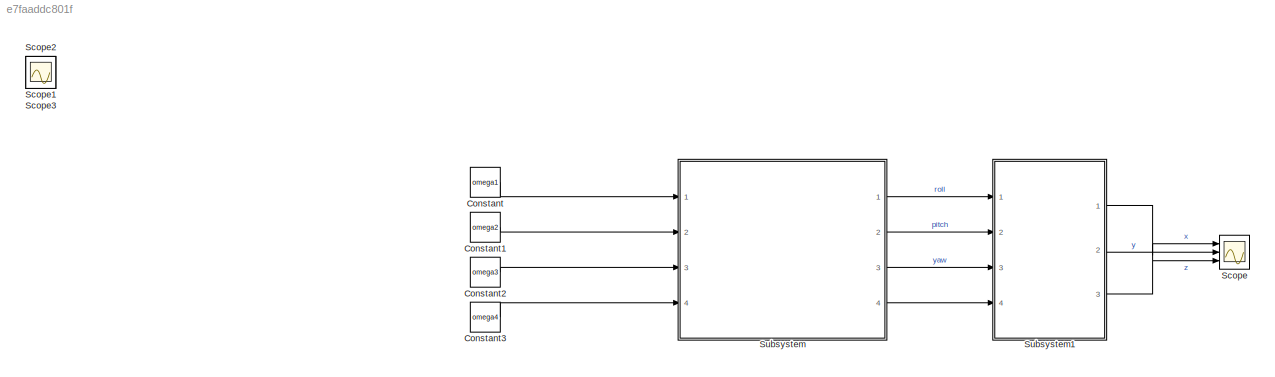
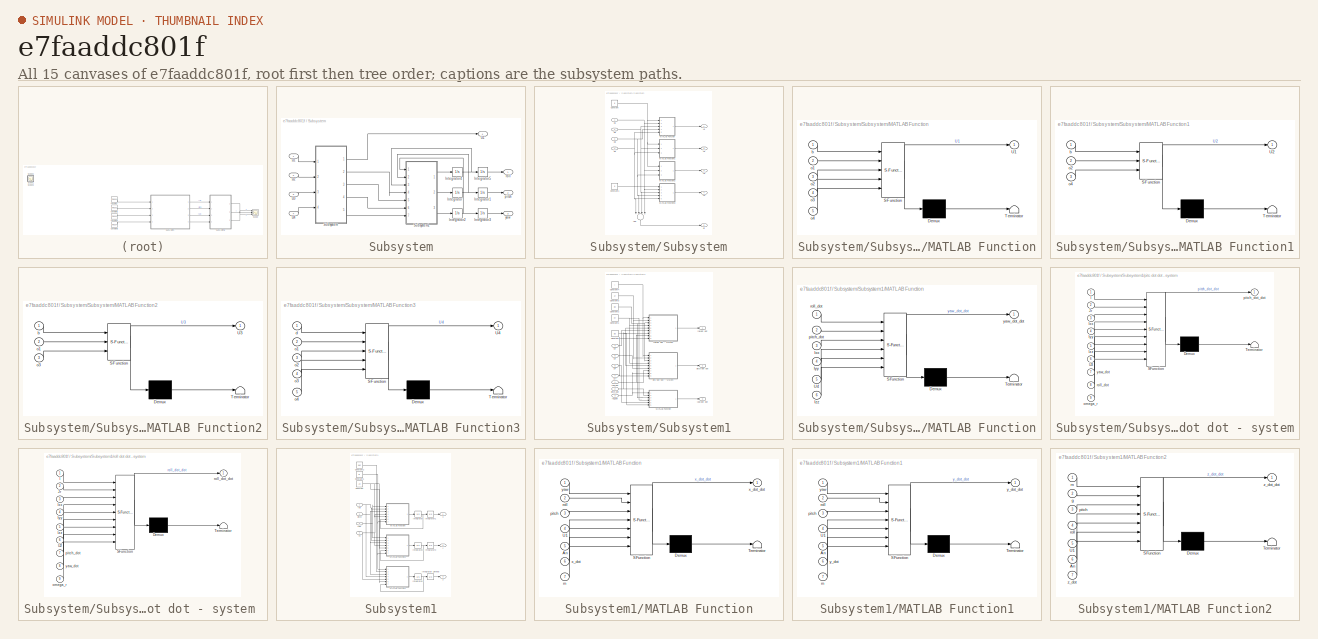
[diagram: thumbnail index - all 15 canvases of the model, root first then tree order]
MODEL slx_e7faaddc801f
KIND model
CONFIG AbsTol = auto
CONFIG EnableMultiTasking = off
CONFIG FixedStep = auto
CONFIG MaxStep = auto
CONFIG MinStep = auto
CONFIG RelTol = 1e-3
CONFIG SampleTimeConstraint = Unconstrained
CONFIG Solver = VariableStepAuto
CONFIG SolverName = VariableStepAuto
CONFIG StartTime = 0.0
CONFIG StopTime = 10.0
BLOCK [Constant] Constant
  Value = omega1
BLOCK [Constant] Constant1
  Value = omega2
BLOCK [Constant] Constant2
  Value = omega3
BLOCK [Constant] Constant3
  Value = omega4
BLOCK [Scope] Scope
  Floating = off
  NumInputPorts = 3
  Ports = [3]
  ScopeSpecificationString = Simulink.scopes.TimeScopeBlockCfg('CurrentConfiguration', extmgr.ConfigurationSet(extmgr.Configuration('Core','General UI',true),extmgr.Configuration('Core','Source UI',true),extmgr.Configuration('Sources','WiredSimulink',true),extmgr.Configuration('Visuals','Time Domain',true,'SerializedDisplays',{struct('MinYLimReal','-304.639','MaxYLimReal','67.77622','YLabelReal','','MinYLimMag',' 0.00000','Ma...<+1386ch>
BLOCK [Scope] Scope1
  Floating = off
  IOType = viewer
  NumInputPorts = 1
  Ports = []
  ScopeSpecificationString = Simulink.scopes.TimeScopeBlockCfg('CurrentConfiguration', extmgr.ConfigurationSet(extmgr.Configuration('Core','General UI',true),extmgr.Configuration('Core','Source UI',true),extmgr.Configuration('Sources','WiredSimulink',true,'DataLoggingVariableName','ScopeData1'),extmgr.Configuration('Visuals','Time Domain',true,'SerializedDisplays',{struct('MinYLimReal','-3.9162','MaxYLimReal','3.88682','YLabe...<+1445ch>
BLOCK [Scope] Scope2
  Floating = off
  IOType = viewer
  NumInputPorts = 1
  Ports = []
  ScopeSpecificationString = Simulink.scopes.TimeScopeBlockCfg('CurrentConfiguration', extmgr.ConfigurationSet(extmgr.Configuration('Core','General UI',true),extmgr.Configuration('Core','Source UI',true),extmgr.Configuration('Sources','WiredSimulink',true,'DataLoggingVariableName','ScopeData1'),extmgr.Configuration('Visuals','Time Domain',true,'SerializedDisplays',{struct('MinYLimReal','-26.375','MaxYLimReal','237.375','YLabe...<+1383ch>
BLOCK [Scope] Scope3
  Floating = off
  IOType = viewer
  NumInputPorts = 1
  Ports = []
  ScopeSpecificationString = Simulink.scopes.TimeScopeBlockCfg('CurrentConfiguration', extmgr.ConfigurationSet(extmgr.Configuration('Core','General UI',true),extmgr.Configuration('Core','Source UI',true),extmgr.Configuration('Sources','WiredSimulink',true,'DataLoggingVariableName','ScopeData1'),extmgr.Configuration('Visuals','Time Domain',true,'SerializedDisplays',{struct('MinYLimReal','-0.76337','MaxYLimReal','6.87031','YLab...<+1430ch>
BLOCK [SubSystem] Subsystem
  Ports = [4, 4]
  RequestExecContextInheritance = off
BLOCK [Integrator] Subsystem/Integrator
  Ports = [1, 1]
BLOCK [Integrator] Subsystem/Integrator1
  Ports = [1, 1]
  WrapState = on
BLOCK [Integrator] Subsystem/Integrator2
  Ports = [1, 1]
BLOCK [Integrator] Subsystem/Integrator3
  Ports = [1, 1]
  WrapState = on
BLOCK [Integrator] Subsystem/Integrator4
  Ports = [1, 1]
BLOCK [Integrator] Subsystem/Integrator5
  Ports = [1, 1]
  WrapState = on
BLOCK [SubSystem] Subsystem/Subsystem
  Ports = [4, 5]
  RequestExecContextInheritance = off
BLOCK [Sum] Subsystem/Subsystem/Add
  InputSameDT = off
  Inputs = -+-+
  OutDataTypeStr = Inherit: Inherit via internal rule
  Ports = [4, 1]
  SaturateOnIntegerOverflow = off
BLOCK [Constant] Subsystem/Subsystem/Constant
  Value = b
BLOCK [Constant] Subsystem/Subsystem/Constant1
  Value = d
BLOCK [SubSystem] Subsystem/Subsystem/MATLAB Function
  ErrorFcn = Stateflow.Translate.translate
  PermitHierarchicalResolution = ExplicitOnly
  Ports = [5, 1]
  RequestExecContextInheritance = off
  SFBlockType = MATLAB Function
  TreatAsAtomicUnit = on
BLOCK [Demux] Subsystem/Subsystem/MATLAB Function/ Demux 
  Outputs = 1
  Ports = [1, 1]
BLOCK [S-Function] Subsystem/Subsystem/MATLAB Function/ SFunction 
  EnableBusSupport = on
  FunctionName = sf_sfun
  PortCounts = [5 2]
  Ports = [5, 2]
  SFcnIsStateOwnerBlock = off
  SFunctionDeploymentMode = off
  Tag = Stateflow S-Function 2
BLOCK [Terminator] Subsystem/Subsystem/MATLAB Function/ Terminator 
BLOCK [Outport] Subsystem/Subsystem/MATLAB Function/U1
  IconDisplay = Port number
BLOCK [Inport] Subsystem/Subsystem/MATLAB Function/b
  IconDisplay = Port number
BLOCK [Inport] Subsystem/Subsystem/MATLAB Function/o1
  IconDisplay = Port number
  Port = 2
BLOCK [Inport] Subsystem/Subsystem/MATLAB Function/o2
  IconDisplay = Port number
  Port = 3
BLOCK [Inport] Subsystem/Subsystem/MATLAB Function/o3
  IconDisplay = Port number
  Port = 4
BLOCK [Inport] Subsystem/Subsystem/MATLAB Function/o4
  IconDisplay = Port number
  Port = 5
BLOCK [SubSystem] Subsystem/Subsystem/MATLAB Function1
  ErrorFcn = Stateflow.Translate.translate
  PermitHierarchicalResolution = ExplicitOnly
  Ports = [3, 1]
  RequestExecContextInheritance = off
  SFBlockType = MATLAB Function
  TreatAsAtomicUnit = on
BLOCK [Demux] Subsystem/Subsystem/MATLAB Function1/ Demux 
  Outputs = 1
  Ports = [1, 1]
BLOCK [S-Function] Subsystem/Subsystem/MATLAB Function1/ SFunction 
  EnableBusSupport = on
  FunctionName = sf_sfun
  PortCounts = [3 2]
  Ports = [3, 2]
  SFcnIsStateOwnerBlock = off
  SFunctionDeploymentMode = off
  Tag = Stateflow S-Function 1
BLOCK [Terminator] Subsystem/Subsystem/MATLAB Function1/ Terminator 
BLOCK [Outport] Subsystem/Subsystem/MATLAB Function1/U2
  IconDisplay = Port number
BLOCK [Inport] Subsystem/Subsystem/MATLAB Function1/b
  IconDisplay = Port number
BLOCK [Inport] Subsystem/Subsystem/MATLAB Function1/o2
  IconDisplay = Port number
  Port = 2
BLOCK [Inport] Subsystem/Subsystem/MATLAB Function1/o4
  IconDisplay = Port number
  Port = 3
BLOCK [SubSystem] Subsystem/Subsystem/MATLAB Function2
  ErrorFcn = Stateflow.Translate.translate
  PermitHierarchicalResolution = ExplicitOnly
  Ports = [3, 1]
  RequestExecContextInheritance = off
  SFBlockType = MATLAB Function
  TreatAsAtomicUnit = on
BLOCK [Demux] Subsystem/Subsystem/MATLAB Function2/ Demux 
  Outputs = 1
  Ports = [1, 1]
BLOCK [S-Function] Subsystem/Subsystem/MATLAB Function2/ SFunction 
  EnableBusSupport = on
  FunctionName = sf_sfun
  PortCounts = [3 2]
  Ports = [3, 2]
  SFcnIsStateOwnerBlock = off
  SFunctionDeploymentMode = off
  Tag = Stateflow S-Function 3
BLOCK [Terminator] Subsystem/Subsystem/MATLAB Function2/ Terminator 
BLOCK [Outport] Subsystem/Subsystem/MATLAB Function2/U3
  IconDisplay = Port number
BLOCK [Inport] Subsystem/Subsystem/MATLAB Function2/b
  IconDisplay = Port number
BLOCK [Inport] Subsystem/Subsystem/MATLAB Function2/o1
  IconDisplay = Port number
  Port = 2
BLOCK [Inport] Subsystem/Subsystem/MATLAB Function2/o3
  IconDisplay = Port number
  Port = 3
BLOCK [SubSystem] Subsystem/Subsystem/MATLAB Function3
  ErrorFcn = Stateflow.Translate.translate
  PermitHierarchicalResolution = ExplicitOnly
  Ports = [5, 1]
  RequestExecContextInheritance = off
  SFBlockType = MATLAB Function
  TreatAsAtomicUnit = on
BLOCK [Demux] Subsystem/Subsystem/MATLAB Function3/ Demux 
  Outputs = 1
  Ports = [1, 1]
BLOCK [S-Function] Subsystem/Subsystem/MATLAB Function3/ SFunction 
  EnableBusSupport = on
  FunctionName = sf_sfun
  PortCounts = [5 2]
  Ports = [5, 2]
  SFcnIsStateOwnerBlock = off
  SFunctionDeploymentMode = off
  Tag = Stateflow S-Function 4
BLOCK [Terminator] Subsystem/Subsystem/MATLAB Function3/ Terminator 
BLOCK [Outport] Subsystem/Subsystem/MATLAB Function3/U4
  IconDisplay = Port number
BLOCK [Inport] Subsystem/Subsystem/MATLAB Function3/d
  IconDisplay = Port number
BLOCK [Inport] Subsystem/Subsystem/MATLAB Function3/o1
  IconDisplay = Port number
  Port = 2
BLOCK [Inport] Subsystem/Subsystem/MATLAB Function3/o2
  IconDisplay = Port number
  Port = 3
BLOCK [Inport] Subsystem/Subsystem/MATLAB Function3/o3
  IconDisplay = Port number
  Port = 4
BLOCK [Inport] Subsystem/Subsystem/MATLAB Function3/o4
  IconDisplay = Port number
  Port = 5
BLOCK [Outport] Subsystem/Subsystem/U1
  IconDisplay = Port number
BLOCK [Outport] Subsystem/Subsystem/U2
  IconDisplay = Port number
  Port = 2
BLOCK [Outport] Subsystem/Subsystem/U3
  IconDisplay = Port number
  Port = 3
BLOCK [Outport] Subsystem/Subsystem/U4
  IconDisplay = Port number
  Port = 4
BLOCK [Inport] Subsystem/Subsystem/Ω1
  IconDisplay = Port number
BLOCK [Inport] Subsystem/Subsystem/Ω2
  IconDisplay = Port number
  Port = 2
BLOCK [Inport] Subsystem/Subsystem/Ω3
  IconDisplay = Port number
  Port = 3
BLOCK [Inport] Subsystem/Subsystem/Ω4
  IconDisplay = Port number
  Port = 4
BLOCK [Outport] Subsystem/Subsystem/Ωr
  IconDisplay = Port number
  Port = 5
BLOCK [SubSystem] Subsystem/Subsystem1
  Ports = [7, 3]
  RequestExecContextInheritance = off
BLOCK [Constant] Subsystem/Subsystem1/Constant
  Value = Izz
BLOCK [Constant] Subsystem/Subsystem1/Constant1
  Value = Iyy
BLOCK [Constant] Subsystem/Subsystem1/Constant2
  Value = Ixx
BLOCK [Constant] Subsystem/Subsystem1/Constant3
  Value = Jr
BLOCK [Constant] Subsystem/Subsystem1/Constant4
  Value = l
BLOCK [SubSystem] Subsystem/Subsystem1/MATLAB Function
  ErrorFcn = Stateflow.Translate.translate
  PermitHierarchicalResolution = ExplicitOnly
  Ports = [6, 1]
  RequestExecContextInheritance = off
  SFBlockType = MATLAB Function
  TreatAsAtomicUnit = on
BLOCK [Demux] Subsystem/Subsystem1/MATLAB Function/ Demux 
  Outputs = 1
  Ports = [1, 1]
BLOCK [S-Function] Subsystem/Subsystem1/MATLAB Function/ SFunction 
  EnableBusSupport = on
  FunctionName = sf_sfun
  PortCounts = [6 2]
  Ports = [6, 2]
  SFcnIsStateOwnerBlock = off
  SFunctionDeploymentMode = off
  Tag = Stateflow S-Function 7
BLOCK [Terminator] Subsystem/Subsystem1/MATLAB Function/ Terminator 
BLOCK [Inport] Subsystem/Subsystem1/MATLAB Function/Ixx
  IconDisplay = Port number
  Port = 3
BLOCK [Inport] Subsystem/Subsystem1/MATLAB Function/Iyy
  IconDisplay = Port number
  Port = 4
BLOCK [Inport] Subsystem/Subsystem1/MATLAB Function/Izz
  IconDisplay = Port number
  Port = 6
BLOCK [Inport] Subsystem/Subsystem1/MATLAB Function/U4
  IconDisplay = Port number
  Port = 5
BLOCK [Inport] Subsystem/Subsystem1/MATLAB Function/pitch_dot
  IconDisplay = Port number
  Port = 2
BLOCK [Inport] Subsystem/Subsystem1/MATLAB Function/roll_dot
  IconDisplay = Port number
BLOCK [Outport] Subsystem/Subsystem1/MATLAB Function/yaw_dot_dot
  IconDisplay = Port number
BLOCK [Inport] Subsystem/Subsystem1/U2
  IconDisplay = Port number
  Port = 4
BLOCK [Inport] Subsystem/Subsystem1/U3
  IconDisplay = Port number
  Port = 5
BLOCK [Inport] Subsystem/Subsystem1/U4
  IconDisplay = Port number
  Port = 6
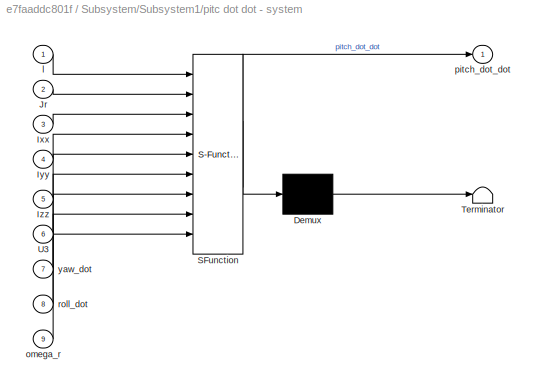
BLOCK [SubSystem] Subsystem/Subsystem1/pitc dot dot - system
  ErrorFcn = Stateflow.Translate.translate
  PermitHierarchicalResolution = ExplicitOnly
  Ports = [9, 1]
  RequestExecContextInheritance = off
  SFBlockType = MATLAB Function
  TreatAsAtomicUnit = on
BLOCK [Demux] Subsystem/Subsystem1/pitc dot dot - system/ Demux 
  Outputs = 1
  Ports = [1, 1]
BLOCK [S-Function] Subsystem/Subsystem1/pitc dot dot - system/ SFunction 
  EnableBusSupport = on
  FunctionName = sf_sfun
  PortCounts = [9 2]
  Ports = [9, 2]
  SFcnIsStateOwnerBlock = off
  SFunctionDeploymentMode = off
  Tag = Stateflow S-Function 6
BLOCK [Terminator] Subsystem/Subsystem1/pitc dot dot - system/ Terminator 
BLOCK [Inport] Subsystem/Subsystem1/pitc dot dot - system/Ixx
  IconDisplay = Port number
  Port = 3
BLOCK [Inport] Subsystem/Subsystem1/pitc dot dot - system/Iyy
  IconDisplay = Port number
  Port = 4
BLOCK [Inport] Subsystem/Subsystem1/pitc dot dot - system/Izz
  IconDisplay = Port number
  Port = 5
BLOCK [Inport] Subsystem/Subsystem1/pitc dot dot - system/Jr
  IconDisplay = Port number
  Port = 2
BLOCK [Inport] Subsystem/Subsystem1/pitc dot dot - system/U3
  IconDisplay = Port number
  Port = 6
BLOCK [Inport] Subsystem/Subsystem1/pitc dot dot - system/l
  IconDisplay = Port number
BLOCK [Inport] Subsystem/Subsystem1/pitc dot dot - system/omega_r
  IconDisplay = Port number
  Port = 9
BLOCK [Outport] Subsystem/Subsystem1/pitc dot dot - system/pitch_dot_dot
  IconDisplay = Port number
BLOCK [Inport] Subsystem/Subsystem1/pitc dot dot - system/roll_dot
  IconDisplay = Port number
  Port = 8
BLOCK [Inport] Subsystem/Subsystem1/pitc dot dot - system/yaw_dot
  IconDisplay = Port number
  Port = 7
BLOCK [Outport] Subsystem/Subsystem1/pitch dot dot
  IconDisplay = Port number
  Port = 2
BLOCK [Inport] Subsystem/Subsystem1/pitch_dot
  IconDisplay = Port number
  Port = 2
BLOCK [Outport] Subsystem/Subsystem1/roll dot dot
  IconDisplay = Port number
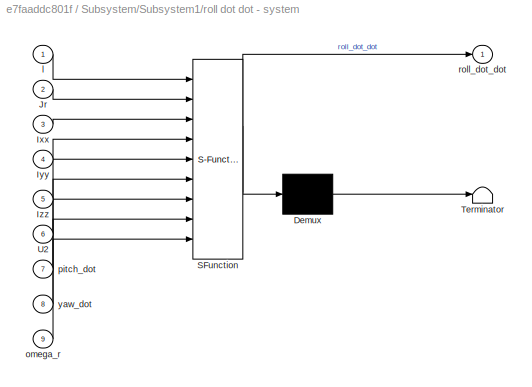
BLOCK [SubSystem] Subsystem/Subsystem1/roll dot dot - system 
  ErrorFcn = Stateflow.Translate.translate
  PermitHierarchicalResolution = ExplicitOnly
  Ports = [9, 1]
  RequestExecContextInheritance = off
  SFBlockType = MATLAB Function
  TreatAsAtomicUnit = on
BLOCK [Demux] Subsystem/Subsystem1/roll dot dot - system / Demux 
  Outputs = 1
  Ports = [1, 1]
BLOCK [S-Function] Subsystem/Subsystem1/roll dot dot - system / SFunction 
  EnableBusSupport = on
  FunctionName = sf_sfun
  PortCounts = [9 2]
  Ports = [9, 2]
  SFcnIsStateOwnerBlock = off
  SFunctionDeploymentMode = off
  Tag = Stateflow S-Function 5
BLOCK [Terminator] Subsystem/Subsystem1/roll dot dot - system / Terminator 
BLOCK [Inport] Subsystem/Subsystem1/roll dot dot - system /Ixx
  IconDisplay = Port number
  Port = 3
BLOCK [Inport] Subsystem/Subsystem1/roll dot dot - system /Iyy
  IconDisplay = Port number
  Port = 4
BLOCK [Inport] Subsystem/Subsystem1/roll dot dot - system /Izz
  IconDisplay = Port number
  Port = 5
BLOCK [Inport] Subsystem/Subsystem1/roll dot dot - system /Jr
  IconDisplay = Port number
  Port = 2
BLOCK [Inport] Subsystem/Subsystem1/roll dot dot - system /U2
  IconDisplay = Port number
  Port = 6
BLOCK [Inport] Subsystem/Subsystem1/roll dot dot - system /l
  IconDisplay = Port number
BLOCK [Inport] Subsystem/Subsystem1/roll dot dot - system /omega_r
  IconDisplay = Port number
  Port = 9
BLOCK [Inport] Subsystem/Subsystem1/roll dot dot - system /pitch_dot
  IconDisplay = Port number
  Port = 7
BLOCK [Outport] Subsystem/Subsystem1/roll dot dot - system /roll_dot_dot
  IconDisplay = Port number
BLOCK [Inport] Subsystem/Subsystem1/roll dot dot - system /yaw_dot
  IconDisplay = Port number
  Port = 8
BLOCK [Inport] Subsystem/Subsystem1/roll_dot
  IconDisplay = Port number
  Port = 3
BLOCK [Outport] Subsystem/Subsystem1/yaw dot dot
  IconDisplay = Port number
  Port = 3
BLOCK [Inport] Subsystem/Subsystem1/yaw_dot
  IconDisplay = Port number
BLOCK [Inport] Subsystem/Subsystem1/Ωr
  IconDisplay = Port number
  Port = 7
BLOCK [Outport] Subsystem/U1
  IconDisplay = Port number
  Port = 4
BLOCK [Outport] Subsystem/pitch
  IconDisplay = Port number
  Port = 2
BLOCK [Outport] Subsystem/roll
  IconDisplay = Port number
BLOCK [Outport] Subsystem/yaw
  IconDisplay = Port number
  Port = 3
BLOCK [Inport] Subsystem/Ω1
  IconDisplay = Port number
BLOCK [Inport] Subsystem/Ω2
  IconDisplay = Port number
  Port = 2
BLOCK [Inport] Subsystem/Ω3
  IconDisplay = Port number
  Port = 3
BLOCK [Inport] Subsystem/Ω4
  IconDisplay = Port number
  Port = 4
BLOCK [SubSystem] Subsystem1
  Ports = [4, 3]
  RequestExecContextInheritance = off
BLOCK [Constant] Subsystem1/Constant
  Value = An
BLOCK [Constant] Subsystem1/Constant1
  Value = m
BLOCK [Constant] Subsystem1/Constant2
  Value = 9.82
BLOCK [Integrator] Subsystem1/Integrator
  Ports = [1, 1]
BLOCK [Integrator] Subsystem1/Integrator Limited
  Ports = [1, 1]
  UpperSaturationLimit = 0
BLOCK [Integrator] Subsystem1/Integrator1
  Ports = [1, 1]
BLOCK [Integrator] Subsystem1/Integrator2
  Ports = [1, 1]
BLOCK [Integrator] Subsystem1/Integrator3
  Ports = [1, 1]
BLOCK [Integrator] Subsystem1/Integrator4
  Ports = [1, 1]
BLOCK [SubSystem] Subsystem1/MATLAB Function
  ErrorFcn = Stateflow.Translate.translate
  PermitHierarchicalResolution = ExplicitOnly
  Ports = [7, 1]
  RequestExecContextInheritance = off
  SFBlockType = MATLAB Function
  TreatAsAtomicUnit = on
BLOCK [Demux] Subsystem1/MATLAB Function/ Demux 
  Outputs = 1
  Ports = [1, 1]
BLOCK [S-Function] Subsystem1/MATLAB Function/ SFunction 
  EnableBusSupport = on
  FunctionName = sf_sfun
  PortCounts = [7 2]
  Ports = [7, 2]
  SFcnIsStateOwnerBlock = off
  SFunctionDeploymentMode = off
  Tag = Stateflow S-Function 8
BLOCK [Terminator] Subsystem1/MATLAB Function/ Terminator 
BLOCK [Inport] Subsystem1/MATLAB Function/An
  IconDisplay = Port number
  Port = 5
BLOCK [Inport] Subsystem1/MATLAB Function/U1
  IconDisplay = Port number
  Port = 4
BLOCK [Inport] Subsystem1/MATLAB Function/m
  IconDisplay = Port number
  Port = 7
BLOCK [Inport] Subsystem1/MATLAB Function/pitch
  IconDisplay = Port number
  Port = 3
BLOCK [Inport] Subsystem1/MATLAB Function/roll
  IconDisplay = Port number
  Port = 2
BLOCK [Inport] Subsystem1/MATLAB Function/x_dot
  IconDisplay = Port number
  Port = 6
BLOCK [Outport] Subsystem1/MATLAB Function/x_dot_dot
  IconDisplay = Port number
BLOCK [Inport] Subsystem1/MATLAB Function/yaw
  IconDisplay = Port number
BLOCK [SubSystem] Subsystem1/MATLAB Function1
  ErrorFcn = Stateflow.Translate.translate
  PermitHierarchicalResolution = ExplicitOnly
  Ports = [7, 1]
  RequestExecContextInheritance = off
  SFBlockType = MATLAB Function
  TreatAsAtomicUnit = on
BLOCK [Demux] Subsystem1/MATLAB Function1/ Demux 
  Outputs = 1
  Ports = [1, 1]
BLOCK [S-Function] Subsystem1/MATLAB Function1/ SFunction 
  EnableBusSupport = on
  FunctionName = sf_sfun
  PortCounts = [7 2]
  Ports = [7, 2]
  SFcnIsStateOwnerBlock = off
  SFunctionDeploymentMode = off
  Tag = Stateflow S-Function 9
BLOCK [Terminator] Subsystem1/MATLAB Function1/ Terminator 
BLOCK [Inport] Subsystem1/MATLAB Function1/An
  IconDisplay = Port number
  Port = 5
BLOCK [Inport] Subsystem1/MATLAB Function1/U1
  IconDisplay = Port number
  Port = 4
BLOCK [Inport] Subsystem1/MATLAB Function1/m
  IconDisplay = Port number
  Port = 7
BLOCK [Inport] Subsystem1/MATLAB Function1/pitch
  IconDisplay = Port number
  Port = 3
BLOCK [Inport] Subsystem1/MATLAB Function1/roll
  IconDisplay = Port number
  Port = 2
BLOCK [Inport] Subsystem1/MATLAB Function1/y_dot
  IconDisplay = Port number
  Port = 6
BLOCK [Outport] Subsystem1/MATLAB Function1/y_dot_dot
  IconDisplay = Port number
BLOCK [Inport] Subsystem1/MATLAB Function1/yaw
  IconDisplay = Port number
BLOCK [SubSystem] Subsystem1/MATLAB Function2
  ErrorFcn = Stateflow.Translate.translate
  PermitHierarchicalResolution = ExplicitOnly
  Ports = [7, 1]
  RequestExecContextInheritance = off
  SFBlockType = MATLAB Function
  TreatAsAtomicUnit = on
BLOCK [Demux] Subsystem1/MATLAB Function2/ Demux 
  Outputs = 1
  Ports = [1, 1]
BLOCK [S-Function] Subsystem1/MATLAB Function2/ SFunction 
  EnableBusSupport = on
  FunctionName = sf_sfun
  PortCounts = [7 2]
  Ports = [7, 2]
  SFcnIsStateOwnerBlock = off
  SFunctionDeploymentMode = off
  Tag = Stateflow S-Function 10
BLOCK [Terminator] Subsystem1/MATLAB Function2/ Terminator 
BLOCK [Inport] Subsystem1/MATLAB Function2/An
  IconDisplay = Port number
  Port = 6
BLOCK [Inport] Subsystem1/MATLAB Function2/U1
  IconDisplay = Port number
  Port = 5
BLOCK [Inport] Subsystem1/MATLAB Function2/g
  IconDisplay = Port number
  Port = 2
BLOCK [Inport] Subsystem1/MATLAB Function2/m
  IconDisplay = Port number
BLOCK [Inport] Subsystem1/MATLAB Function2/pitch
  IconDisplay = Port number
  Port = 3
BLOCK [Inport] Subsystem1/MATLAB Function2/roll
  IconDisplay = Port number
  Port = 4
BLOCK [Inport] Subsystem1/MATLAB Function2/z_dot
  IconDisplay = Port number
  Port = 7
BLOCK [Outport] Subsystem1/MATLAB Function2/z_dot_dot
  IconDisplay = Port number
BLOCK [Inport] Subsystem1/U1
  IconDisplay = Port number
  Port = 4
BLOCK [Inport] Subsystem1/pitch
  IconDisplay = Port number
  Port = 2
BLOCK [Inport] Subsystem1/roll
  IconDisplay = Port number
BLOCK [Outport] Subsystem1/x
  IconDisplay = Port number
BLOCK [Outport] Subsystem1/y
  IconDisplay = Port number
  Port = 2
BLOCK [Inport] Subsystem1/yaw
  IconDisplay = Port number
  Port = 3
BLOCK [Outport] Subsystem1/z
  IconDisplay = Port number
  Port = 3
LINE Constant1:1 -> Subsystem:2
LINE Constant2:1 -> Subsystem:3
LINE Constant3:1 -> Subsystem:4
LINE Constant:1 -> Subsystem:1
LINE Subsystem/Integrator1:1 -> Subsystem/pitch:1
NET Subsystem/Integrator2:1 -> Subsystem/Integrator3:1, Subsystem/Subsystem1:1
LINE Subsystem/Integrator3:1 -> Subsystem/yaw:1
NET Subsystem/Integrator4:1 -> Subsystem/Integrator5:1, Subsystem/Subsystem1:3
LINE Subsystem/Integrator5:1 -> Subsystem/roll:1
NET Subsystem/Integrator:1 -> Subsystem/Integrator1:1, Subsystem/Subsystem1:2
LINE Subsystem/Subsystem/Add:1 -> Subsystem/Subsystem/Ωr:1
LINE Subsystem/Subsystem/Constant1:1 -> Subsystem/Subsystem/MATLAB Function3:1
NET Subsystem/Subsystem/Constant:1 -> Subsystem/Subsystem/MATLAB Function1:1, Subsystem/Subsystem/MATLAB Function2:1, Subsystem/Subsystem/MATLAB Function:1
LINE Subsystem/Subsystem/MATLAB Function1:1 -> Subsystem/Subsystem/U2:1
LINE Subsystem/Subsystem/MATLAB Function2:1 -> Subsystem/Subsystem/U3:1
LINE Subsystem/Subsystem/MATLAB Function3:1 -> Subsystem/Subsystem/U4:1
LINE Subsystem/Subsystem/MATLAB Function:1 -> Subsystem/Subsystem/U1:1
NET Subsystem/Subsystem/Ω1:1 -> Subsystem/Subsystem/Add:4, Subsystem/Subsystem/MATLAB Function2:2, Subsystem/Subsystem/MATLAB Function3:2, Subsystem/Subsystem/MATLAB Function:2
NET Subsystem/Subsystem/Ω2:1 -> Subsystem/Subsystem/Add:3, Subsystem/Subsystem/MATLAB Function1:2, Subsystem/Subsystem/MATLAB Function3:3, Subsystem/Subsystem/MATLAB Function:3
NET Subsystem/Subsystem/Ω3:1 -> Subsystem/Subsystem/Add:2, Subsystem/Subsystem/MATLAB Function2:3, Subsystem/Subsystem/MATLAB Function3:4, Subsystem/Subsystem/MATLAB Function:4
NET Subsystem/Subsystem/Ω4:1 -> Subsystem/Subsystem/Add:1, Subsystem/Subsystem/MATLAB Function1:3, Subsystem/Subsystem/MATLAB Function3:5, Subsystem/Subsystem/MATLAB Function:5
NET Subsystem/Subsystem1/Constant1:1 -> Subsystem/Subsystem1/MATLAB Function:4, Subsystem/Subsystem1/pitc dot dot - system:4, Subsystem/Subsystem1/roll dot dot - system :4
NET Subsystem/Subsystem1/Constant2:1 -> Subsystem/Subsystem1/MATLAB Function:3, Subsystem/Subsystem1/pitc dot dot - system:3, Subsystem/Subsystem1/roll dot dot - system :3
NET Subsystem/Subsystem1/Constant3:1 -> Subsystem/Subsystem1/pitc dot dot - system:2, Subsystem/Subsystem1/roll dot dot - system :2
NET Subsystem/Subsystem1/Constant4:1 -> Subsystem/Subsystem1/pitc dot dot - system:1, Subsystem/Subsystem1/roll dot dot - system :1
NET Subsystem/Subsystem1/Constant:1 -> Subsystem/Subsystem1/MATLAB Function:6, Subsystem/Subsystem1/pitc dot dot - system:5, Subsystem/Subsystem1/roll dot dot - system :5
LINE Subsystem/Subsystem1/MATLAB Function:1 -> Subsystem/Subsystem1/yaw dot dot:1
LINE Subsystem/Subsystem1/U2:1 -> Subsystem/Subsystem1/roll dot dot - system :6
LINE Subsystem/Subsystem1/U3:1 -> Subsystem/Subsystem1/pitc dot dot - system:6
LINE Subsystem/Subsystem1/U4:1 -> Subsystem/Subsystem1/MATLAB Function:5
LINE Subsystem/Subsystem1/pitc dot dot - system:1 -> Subsystem/Subsystem1/pitch dot dot:1
NET Subsystem/Subsystem1/pitch_dot:1 -> Subsystem/Subsystem1/MATLAB Function:2, Subsystem/Subsystem1/roll dot dot - system :7
LINE Subsystem/Subsystem1/roll dot dot - system :1 -> Subsystem/Subsystem1/roll dot dot:1
NET Subsystem/Subsystem1/roll_dot:1 -> Subsystem/Subsystem1/MATLAB Function:1, Subsystem/Subsystem1/pitc dot dot - system:8
NET Subsystem/Subsystem1/yaw_dot:1 -> Subsystem/Subsystem1/pitc dot dot - system:7, Subsystem/Subsystem1/roll dot dot - system :8
NET Subsystem/Subsystem1/Ωr:1 -> Subsystem/Subsystem1/pitc dot dot - system:9, Subsystem/Subsystem1/roll dot dot - system :9
LINE Subsystem/Subsystem1:1 -> Subsystem/Integrator4:1
LINE Subsystem/Subsystem1:2 -> Subsystem/Integrator:1
LINE Subsystem/Subsystem1:3 -> Subsystem/Integrator2:1
LINE Subsystem/Subsystem:1 -> Subsystem/U1:1
LINE Subsystem/Subsystem:2 -> Subsystem/Subsystem1:4
LINE Subsystem/Subsystem:3 -> Subsystem/Subsystem1:5
LINE Subsystem/Subsystem:4 -> Subsystem/Subsystem1:6
LINE Subsystem/Subsystem:5 -> Subsystem/Subsystem1:7
LINE Subsystem/Ω1:1 -> Subsystem/Subsystem:1
LINE Subsystem/Ω2:1 -> Subsystem/Subsystem:2
LINE Subsystem/Ω3:1 -> Subsystem/Subsystem:3
LINE Subsystem/Ω4:1 -> Subsystem/Subsystem:4
NET Subsystem1/Constant1:1 -> Subsystem1/MATLAB Function1:7, Subsystem1/MATLAB Function2:1, Subsystem1/MATLAB Function:7
LINE Subsystem1/Constant2:1 -> Subsystem1/MATLAB Function2:2
NET Subsystem1/Constant:1 -> Subsystem1/MATLAB Function1:5, Subsystem1/MATLAB Function2:6, Subsystem1/MATLAB Function:5
LINE Subsystem1/Integrator Limited:1 -> Subsystem1/z:1
LINE Subsystem1/Integrator1:1 -> Subsystem1/x:1
NET Subsystem1/Integrator2:1 -> Subsystem1/Integrator3:1, Subsystem1/MATLAB Function1:6
LINE Subsystem1/Integrator3:1 -> Subsystem1/y:1
NET Subsystem1/Integrator4:1 -> Subsystem1/Integrator Limited:1, Subsystem1/MATLAB Function2:7
NET Subsystem1/Integrator:1 -> Subsystem1/Integrator1:1, Subsystem1/MATLAB Function:6
LINE Subsystem1/MATLAB Function1:1 -> Subsystem1/Integrator2:1
LINE Subsystem1/MATLAB Function2:1 -> Subsystem1/Integrator4:1
LINE Subsystem1/MATLAB Function:1 -> Subsystem1/Integrator:1
NET Subsystem1/U1:1 -> Subsystem1/MATLAB Function1:4, Subsystem1/MATLAB Function2:5, Subsystem1/MATLAB Function:4
NET Subsystem1/pitch:1 -> Subsystem1/MATLAB Function1:3, Subsystem1/MATLAB Function2:3, Subsystem1/MATLAB Function:3
NET Subsystem1/roll:1 -> Subsystem1/MATLAB Function1:2, Subsystem1/MATLAB Function2:4, Subsystem1/MATLAB Function:2
NET Subsystem1/yaw:1 -> Subsystem1/MATLAB Function1:1, Subsystem1/MATLAB Function:1
LINE Subsystem1:1 -> Scope:1
LINE Subsystem1:2 -> Scope:2
LINE Subsystem1:3 -> Scope:3
LINE Subsystem:1 -> Subsystem1:1
LINE Subsystem:2 -> Subsystem1:2
LINE Subsystem:3 -> Subsystem1:3
LINE Subsystem:4 -> Subsystem1:4
note: NET lines group one-source signal fan-out (src -> all destinations, sorted); 1:1 wires keep LINE
CHART Subsystem/Subsystem/MATLAB Function1 states=1 transitions=1
  STATE_LABEL 'eML_blk_kernel()'
  STATE_LABEL 'SCRIPT:\nfunction U2 = fcn(b, o2, o4)\n\nU2 = b*(-o2^2+o4^2);\n'
CHART Subsystem/Subsystem/MATLAB Function states=1 transitions=1
  STATE_LABEL 'eML_blk_kernel()'
  STATE_LABEL 'SCRIPT:\nfunction U1 = fcn(b, o1, o2, o3, o4)\n\nU1 = b*(o1^2+o2^2+o3^2+o4^2);\n'
CHART Subsystem/Subsystem/MATLAB Function2 states=1 transitions=1
  STATE_LABEL 'eML_blk_kernel()'
  STATE_LABEL 'SCRIPT:\nfunction U3 = fcn(b, o1, o3)\n\nU3 = b*(o1^2-o3^2);\n'
CHART Subsystem/Subsystem/MATLAB Function3 states=1 transitions=1
  STATE_LABEL 'eML_blk_kernel()'
  STATE_LABEL 'SCRIPT:\nfunction U4 = fcn(d, o1, o2, o3, o4)\n\nU4 = d*(o1^2-o2^2+o3^2-o4^2);\n'
CHART Subsystem/Subsystem1/roll dot dot - system
 states=1 transitions=1
  STATE_LABEL 'eML_blk_kernel()'
  STATE_LABEL 'SCRIPT:\nfunction roll_dot_dot = fcn(l, Jr, Ixx, Iyy, Izz, U2,pitch_dot , yaw_dot, omega_r)\n\nroll_dot_dot = pitch_dot*yaw_dot*((Iyy-Izz)/Ixx)+(1/Ixx)*U2;\n'
CHART Subsystem/Subsystem1/pitc dot dot - system states=1 transitions=1
  STATE_LABEL 'eML_blk_kernel()'
  STATE_LABEL 'SCRIPT:\nfunction pitch_dot_dot = fcn(l, Jr, Ixx, Iyy, Izz, U3, yaw_dot, roll_dot, omega_r)\n\npitch_dot_dot = roll_dot*yaw_dot*((Izz-Ixx)/Iyy)+(1/Iyy)*U3;\n'
CHART Subsystem/Subsystem1/MATLAB Function states=1 transitions=1
  STATE_LABEL 'eML_blk_kernel()'
  STATE_LABEL 'SCRIPT:\nfunction yaw_dot_dot = fcn(roll_dot, pitch_dot, Ixx, Iyy, U4, Izz)\n\nyaw_dot_dot = pitch_dot*roll_dot*((Ixx-Iyy)/Izz)+(1/Izz)*U4;\n'
CHART Subsystem1/MATLAB Function states=1 transitions=1
  STATE_LABEL 'eML_blk_kernel()'
  STATE_LABEL 'SCRIPT:\nfunction x_dot_dot = fcn(yaw, roll, pitch, U1, An, x_dot, m)\n\n\nx_dot_dot = (0.9*pitch)*(U1/m);\n'
CHART Subsystem1/MATLAB Function1 states=1 transitions=1
  STATE_LABEL 'eML_blk_kernel()'
  STATE_LABEL 'SCRIPT:\nfunction y_dot_dot = fcn(yaw, roll, pitch, U1, An, y_dot, m)\n\ny_dot_dot = (-0.95*roll)*(U1/m);\n'
CHART Subsystem1/MATLAB Function2 states=1 transitions=1
  STATE_LABEL 'eML_blk_kernel()'
  STATE_LABEL 'SCRIPT:\nfunction z_dot_dot = fcn(m, g, pitch, roll, U1, An, z_dot)\n\nz_dot_dot = -g+0.9*(U1/m);\n'
